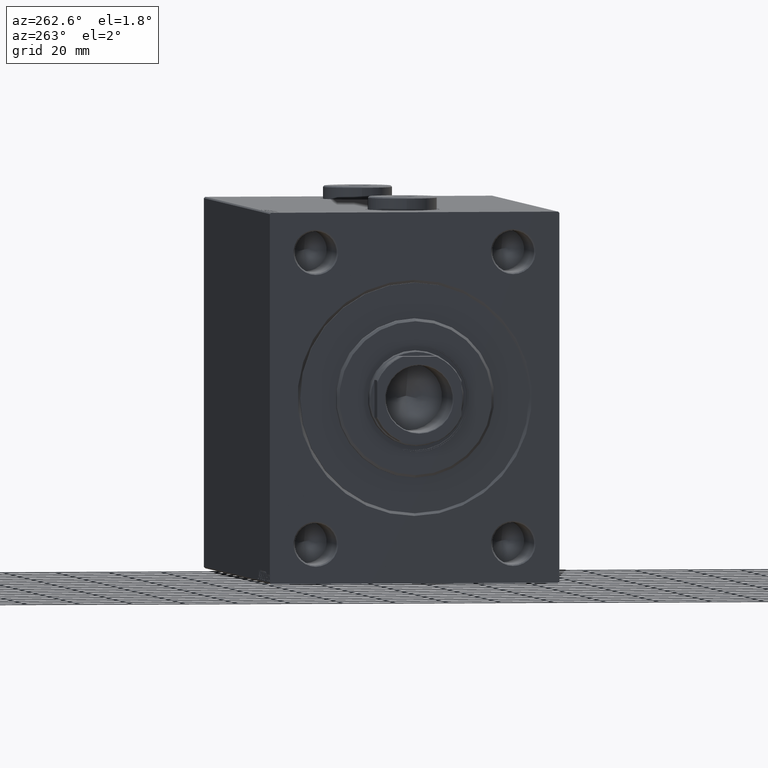
[diagram: clean part render]
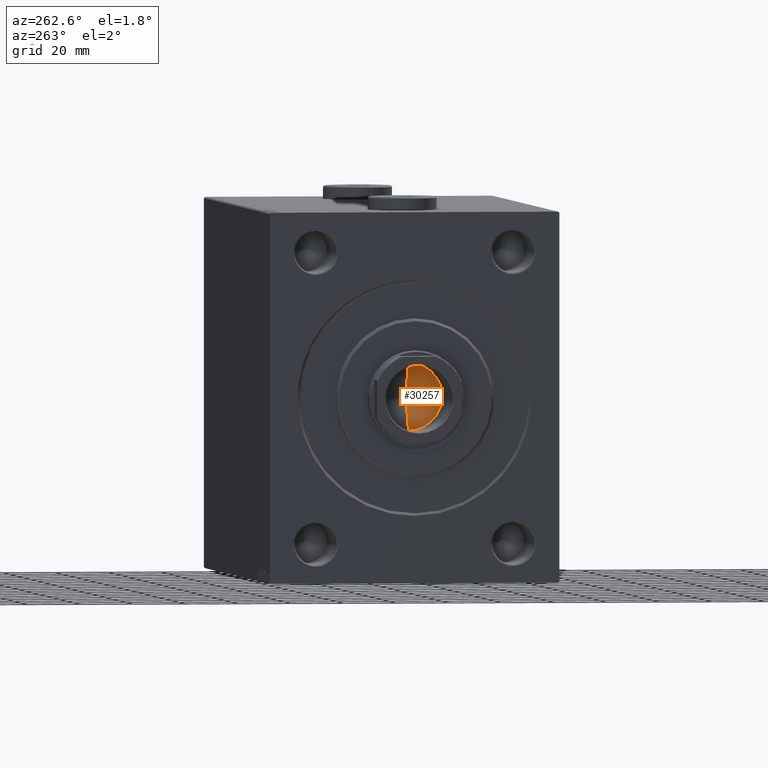
[diagram: same view with one face highlighted and labeled with its STEP entity id]
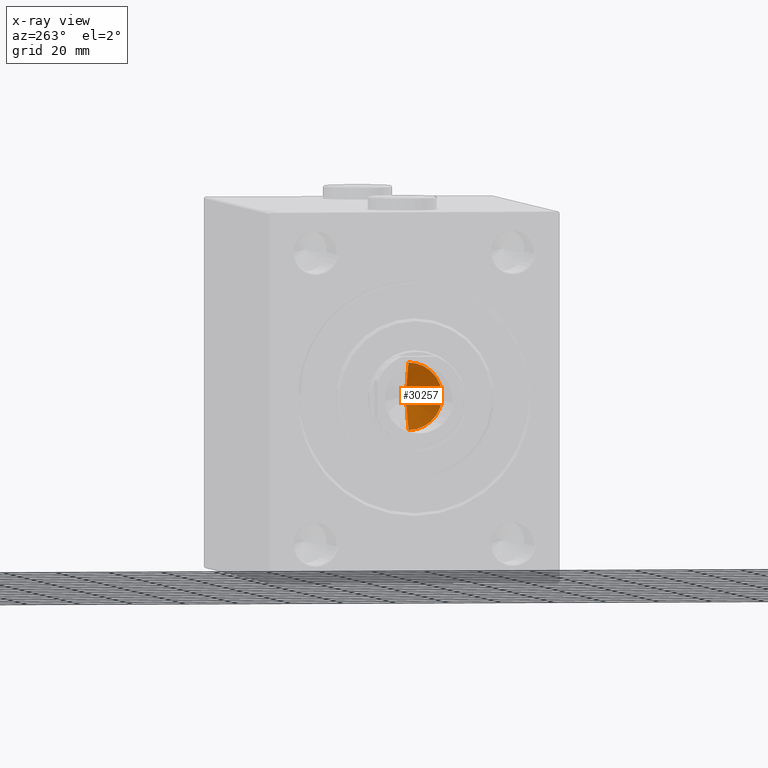
[diagram: x-ray of the same camera — body ghosted, the highlighted face saturated]
A machine part, auxiliary view. The second image highlights one B-rep face of the part: STEP entity #30257.
The next image is the same camera in x-ray: the body ghosted, the highlighted face saturated — about 0% of this face is hidden behind the body in this view.
In plain terms, the highlighted conical surface has half-angle 59 deg.
Its self-contained STEP definition (entity closure, byte-faithful):
#7953 = DIRECTION ( 'NONE',  ( 1.000000000000000000, 0.000000000000000000, 0.000000000000000000 ) ) ;
#8779 = VERTEX_POINT ( 'NONE', #19838 ) ;
#11259 = ORIENTED_EDGE ( 'NONE', *, *, #14925, .T. ) ;
#12155 = CONICAL_SURFACE ( 'NONE', #29892, 12.74999999999999467, 1.029744258676653645 ) ;
#12386 = EDGE_CURVE ( 'NONE', #27292, #17960, #30428, .T. ) ;
#14327 = VECTOR ( 'NONE', #38918, 1000.000000000000000 ) ;
#14925 = EDGE_CURVE ( 'NONE', #17960, #8779, #15566, .T. ) ;
#15318 = CARTESIAN_POINT ( 'NONE',  ( 12.74999999999999467, 0.000000000000000000, 154.0000000000000000 ) ) ;
#15566 = CIRCLE ( 'NONE', #29607, 12.74999999999999467 ) ;
#17960 = VERTEX_POINT ( 'NONE', #39236 ) ;
#19549 = CARTESIAN_POINT ( 'NONE',  ( -12.74999999999999467, 1.561424668912874519E-15, 154.0000000000000000 ) ) ;
#19838 = CARTESIAN_POINT ( 'NONE',  ( 12.74999999999999467, 0.000000000000000000, 154.0000000000000000 ) ) ;
#22743 = CARTESIAN_POINT ( 'NONE',  ( 0.000000000000000000, 0.000000000000000000, 154.0000000000000000 ) ) ;
#22765 = ORIENTED_EDGE ( 'NONE', *, *, #12386, .T. ) ;
#23597 = FACE_OUTER_BOUND ( 'NONE', #38460, .T. ) ;
#24224 = EDGE_CURVE ( 'NONE', #27292, #8779, #29442, .T. ) ;
#26404 = DIRECTION ( 'NONE',  ( 1.000000000000000000, 0.000000000000000000, 0.000000000000000000 ) ) ;
#27292 = VERTEX_POINT ( 'NONE', #34291 ) ;
#29442 = LINE ( 'NONE', #15318, #14327 ) ;
#29607 = AXIS2_PLACEMENT_3D ( 'NONE', #22743, #39621, #7953 ) ;
#29892 = AXIS2_PLACEMENT_3D ( 'NONE', #36799, #44403, #26404 ) ;
#30257 = ADVANCED_FACE ( 'NONE', ( #23597 ), #12155, .F. ) ;
#30428 = LINE ( 'NONE', #19549, #39844 ) ;
#34119 = DIRECTION ( 'NONE',  ( -0.8571673007021118895, 1.049727191138618079E-16, 0.5150380749100549327 ) ) ;
#34291 = CARTESIAN_POINT ( 'NONE',  ( -1.026246296720136938E-14, 0.000000000000000000, 146.3390271073986071 ) ) ;
#36799 = CARTESIAN_POINT ( 'NONE',  ( 0.000000000000000000, 0.000000000000000000, 154.0000000000000000 ) ) ;
#37252 = ORIENTED_EDGE ( 'NONE', *, *, #24224, .F. ) ;
#38460 = EDGE_LOOP ( 'NONE', ( #37252, #22765, #11259 ) ) ;
#38918 = DIRECTION ( 'NONE',  ( 0.8571673007021118895, 0.000000000000000000, 0.5150380749100549327 ) ) ;
#39236 = CARTESIAN_POINT ( 'NONE',  ( -12.74999999999999467, 1.561424668912874519E-15, 154.0000000000000000 ) ) ;
#39621 = DIRECTION ( 'NONE',  ( -0.000000000000000000, -0.000000000000000000, 1.000000000000000000 ) ) ;
#39844 = VECTOR ( 'NONE', #34119, 1000.000000000000000 ) ;
#44403 = DIRECTION ( 'NONE',  ( -0.000000000000000000, -0.000000000000000000, 1.000000000000000000 ) ) ;